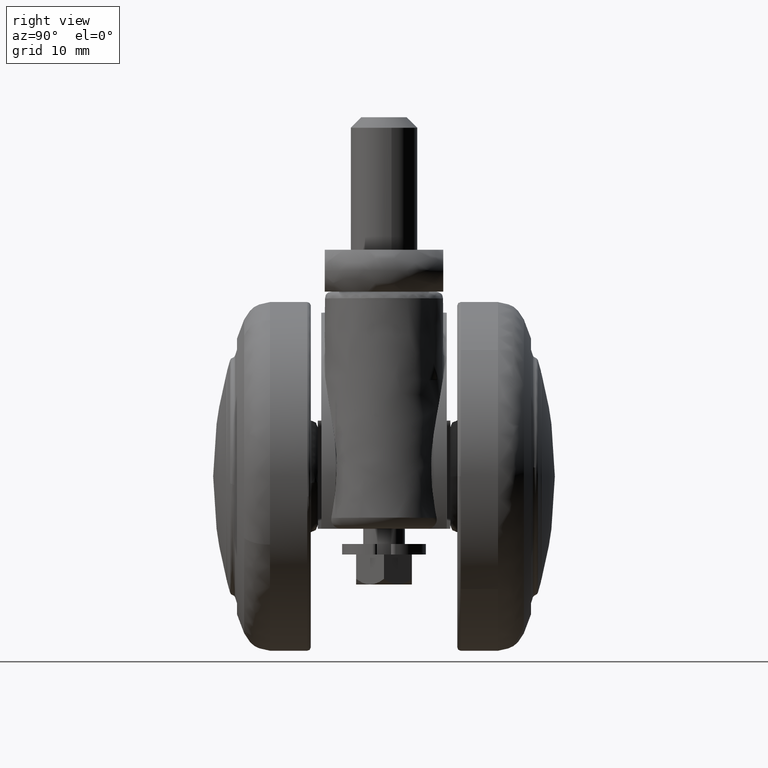
[diagram: clean part render]
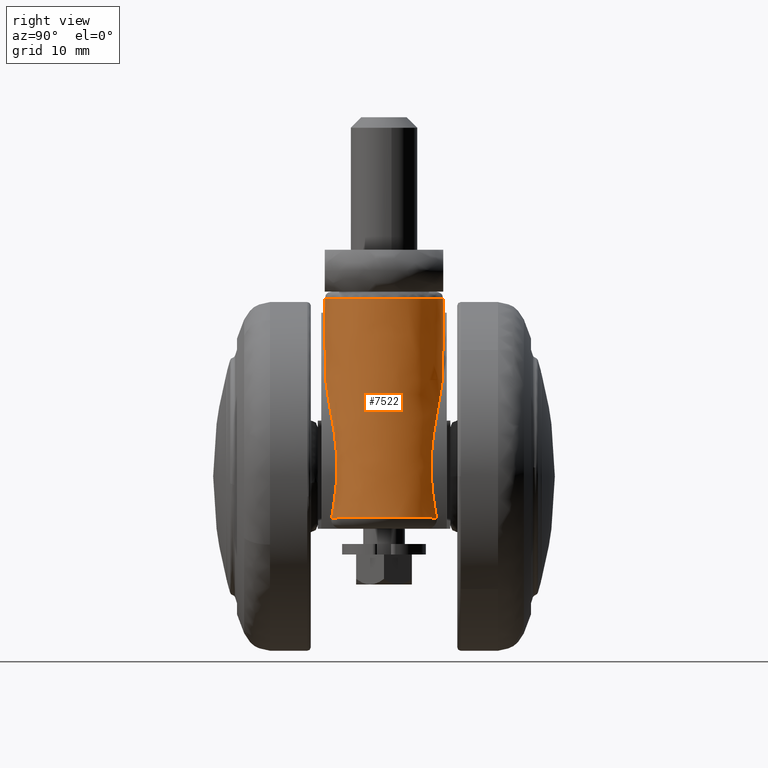
[diagram: same view with one face highlighted and labeled with its STEP entity id]
A machine part, right view. The second image highlights one B-rep face of the part: STEP entity #7522.
In plain terms, the highlighted face is a freeform B-spline surface patch.
Its self-contained STEP definition (entity closure, byte-faithful):
#5633=CARTESIAN_POINT('',(9.070010925223931,-2.937707243113865,25.444837357169000));
#5634=VERTEX_POINT('',#5633);
#5635=CARTESIAN_POINT('',(9.075658105813609,2.952950023515245,25.444858591452249));
#5636=VERTEX_POINT('',#5635);
#5868=CARTESIAN_POINT('',(9.075658105813609,2.952950023515245,25.444858591452249));
#5869=CARTESIAN_POINT('',(11.550755547935500,9.624828039032638,25.461932909833362));
#5870=CARTESIAN_POINT('',(18.562812573680841,8.365867655189087,25.510365996857111));
#5871=CARTESIAN_POINT('',(25.574869599426179,7.106907271345536,25.558799083880871));
#5872=CARTESIAN_POINT('',(25.568048645150430,-0.008130619107478,25.558773436024762));
#5873=CARTESIAN_POINT('',(25.561227690874677,-7.123168509560495,25.558747788168667));
#5874=CARTESIAN_POINT('',(18.546769657692909,-8.368734353992007,25.510305672981001));
#5875=CARTESIAN_POINT('',(11.532311624511136,-9.614300198423516,25.461863557793340));
#5876=CARTESIAN_POINT('',(9.070010925223931,-2.937707243113865,25.444837357169000));
#5884=(BOUNDED_CURVE()B_SPLINE_CURVE(2,(#5868,#5869,#5870,#5871,#5872,#5873,#5874,#5875,#5876),.UNSPECIFIED.,.F.,.U.)B_SPLINE_CURVE_WITH_KNOTS((3,2,2,2,3),(0.0,0.250000000000000,0.500000000000000,0.750000000000000,1.0),.UNSPECIFIED.)CURVE()GEOMETRIC_REPRESENTATION_ITEM()RATIONAL_B_SPLINE_CURVE((1.0,0.766812334068948,1.0,0.766812334068948,1.0,0.766812334068948,1.0,0.766812334068948,1.0))REPRESENTATION_ITEM(''));
#5885=EDGE_CURVE('',#5636,#5634,#5884,.T.);
#5938=CARTESIAN_POINT('',(22.884421657853402,7.516820868601760,-5.958834475768210));
#5939=VERTEX_POINT('',#5938);
#6114=CARTESIAN_POINT('',(16.482851119549000,8.438124471990021,17.681804329725850));
#6115=VERTEX_POINT('',#6114);
#6130=CARTESIAN_POINT('',(22.884421657853402,7.516820868601760,-5.958834475768210));
#6131=CARTESIAN_POINT('',(22.941035205759501,7.479574176039711,-5.743664703561418));
#6132=CARTESIAN_POINT('',(23.053400865462059,7.405647539461216,-5.316599198990497));
#6133=CARTESIAN_POINT('',(23.197850357664532,7.299434482752839,-4.674427883910498));
#6134=CARTESIAN_POINT('',(23.323646654923451,7.199598077634553,-4.037475372915838));
#6135=CARTESIAN_POINT('',(23.429829002798911,7.107527343991423,-3.405241178190038));
#6136=CARTESIAN_POINT('',(23.517428412781779,7.024265004432325,-2.777810326827642));
#6137=CARTESIAN_POINT('',(23.586899676400659,6.950754600101239,-2.155118631816310));
#6138=CARTESIAN_POINT('',(23.638782279710110,6.887785205316636,-1.537142284235447));
#6139=CARTESIAN_POINT('',(23.673504431166311,6.836008262977459,-0.923863591479593));
#6140=CARTESIAN_POINT('',(23.691459443789832,6.795958863885354,-0.315226587847751));
#6141=CARTESIAN_POINT('',(23.694791475558990,6.728768864974462,1.135265893010022));
#6142=CARTESIAN_POINT('',(23.506254882257629,6.769606742350410,3.469992097558791));
#6143=CARTESIAN_POINT('',(22.893021020169289,7.100516303880302,6.214123630903401));
#6144=CARTESIAN_POINT('',(22.088752421635728,7.498715084716715,8.529690043623191));
#6145=CARTESIAN_POINT('',(21.227480042849709,7.860746685595074,10.449208108394190));
#6146=CARTESIAN_POINT('',(20.378032612156240,8.131655114637612,11.946957666682490));
#6147=CARTESIAN_POINT('',(19.635105109359760,8.302943642131927,13.107694932109730));
#6148=CARTESIAN_POINT('',(19.048567877204871,8.405745516386718,13.999580676893039));
#6149=CARTESIAN_POINT('',(18.388990409920719,8.479160728360197,14.976932932915050));
#6150=CARTESIAN_POINT('',(17.713875094603271,8.507064315062490,15.957575067134989));
#6151=CARTESIAN_POINT('',(17.080275599176190,8.494933682653562,16.858447289154650));
#6152=CARTESIAN_POINT('',(16.673954527198639,8.456296532415909,17.418429892401711));
#6153=CARTESIAN_POINT('',(16.482851119549000,8.438124471990021,17.681804329725850));
#6154=B_SPLINE_CURVE_WITH_KNOTS('',3,(#6130,#6131,#6132,#6133,#6134,#6135,#6136,#6137,#6138,#6139,#6140,#6141,#6142,#6143,#6144,#6145,#6146,#6147,#6148,#6149,#6150,#6151,#6152,#6153),.UNSPECIFIED.,.F.,.U.,(4,1,1,1,1,1,1,1,1,1,1,1,1,1,1,1,1,1,1,1,1,4),(0.0,0.026363962758521,0.052326769427147,0.077908219648945,0.103129012710371,0.128010749353429,0.152575925959269,0.176847920190641,0.200850967268826,0.224610126198441,0.248151235444041,0.370549190044193,0.496847238813326,0.577595991505935,0.660470245736561,0.746007352332712,0.780990271434176,0.822759933892346,0.871318893285512,0.919022303390770,0.961914075264850,1.0),.UNSPECIFIED.);
#6155=EDGE_CURVE('',#5939,#6115,#6154,.T.);
#6238=CARTESIAN_POINT('',(14.601306427490020,8.036616070161891,20.108176495131101));
#6239=VERTEX_POINT('',#6238);
#6253=CARTESIAN_POINT('',(16.482851119549000,8.438124471990021,17.681804329725850));
#6254=CARTESIAN_POINT('',(16.349956653015330,8.421569956355567,17.861884634854189));
#6255=CARTESIAN_POINT('',(16.089467455427940,8.389121107230800,18.214863772418880));
#6256=CARTESIAN_POINT('',(15.700720078826240,8.320631784174331,18.726941455700949));
#6257=CARTESIAN_POINT('',(15.323978913138021,8.239424697782685,19.212320469294550));
#6258=CARTESIAN_POINT('',(14.959603701792769,8.146762080091074,19.671343708823311));
#6259=CARTESIAN_POINT('',(14.718915710003239,8.072770945257366,19.964788324858571));
#6260=CARTESIAN_POINT('',(14.601306427490020,8.036616070161891,20.108176495131101));
#6261=B_SPLINE_CURVE_WITH_KNOTS('',3,(#6253,#6254,#6255,#6256,#6257,#6258,#6259,#6260),.UNSPECIFIED.,.F.,.U.,(4,1,1,1,1,4),(0.0,0.217227073643007,0.425791288256460,0.625738739886945,0.817121751911590,1.0),.UNSPECIFIED.);
#6262=EDGE_CURVE('',#6115,#6239,#6261,.T.);
#6412=CARTESIAN_POINT('',(14.628022690233299,-8.045893878071739,20.069856902502650));
#6413=VERTEX_POINT('',#6412);
#6414=CARTESIAN_POINT('',(9.070010925223931,-2.937707243113865,25.444837357169000));
#6415=CARTESIAN_POINT('',(9.137854779852775,-3.113466288722163,25.393151683502101));
#6416=CARTESIAN_POINT('',(9.437314180805366,-3.816283612428233,25.163601675117089));
#6417=CARTESIAN_POINT('',(10.122052192541720,-4.949713833514489,24.624292707118361));
#6418=CARTESIAN_POINT('',(11.033351123513730,-5.947166269293470,23.841561182405378));
#6419=CARTESIAN_POINT('',(11.838983254773501,-6.620199027330384,23.089694607089051));
#6420=CARTESIAN_POINT('',(12.493416624146450,-7.073426694443958,22.443864617300481));
#6421=CARTESIAN_POINT('',(13.182630455993470,-7.464366147926037,21.723748380997179));
#6422=CARTESIAN_POINT('',(13.901891359862519,-7.797796438682016,20.931473576218949));
#6423=CARTESIAN_POINT('',(14.382302813897820,-7.961938717928929,20.361424465640361));
#6424=CARTESIAN_POINT('',(14.628022690233299,-8.045893878071739,20.069856902502650));
#6425=B_SPLINE_CURVE_WITH_KNOTS('',3,(#6414,#6415,#6416,#6417,#6418,#6419,#6420,#6421,#6422,#6423,#6424),.UNSPECIFIED.,.F.,.U.,(4,1,1,1,1,1,1,1,4),(0.619286242368023,0.642433091575388,0.713723201895343,0.787697378712744,0.826503465412993,0.866996355129486,0.909325565714501,0.953622024220544,1.0),.UNSPECIFIED.);
#6426=EDGE_CURVE('',#5634,#6413,#6425,.T.);
#6429=CARTESIAN_POINT('',(14.601306427490020,8.036616070161891,20.108176495131101));
#6430=CARTESIAN_POINT('',(14.473772636491390,7.994186218019736,20.260639257984590));
#6431=CARTESIAN_POINT('',(14.221798172967780,7.910355534906422,20.561867022271450));
#6432=CARTESIAN_POINT('',(13.843674151889340,7.761427312865465,20.996753627676430));
#6433=CARTESIAN_POINT('',(13.472379446720470,7.597355012658925,21.412018137519269));
#6434=CARTESIAN_POINT('',(13.108340904053840,7.416591011128974,21.806954662089080));
#6435=CARTESIAN_POINT('',(12.752471044244270,7.219709461237317,22.181803323151691));
#6436=CARTESIAN_POINT('',(12.405559289000109,7.006786097613256,22.536568680209971));
#6437=CARTESIAN_POINT('',(12.068435317601550,6.778085720653270,22.871284696655771));
#6438=CARTESIAN_POINT('',(11.741893920186330,6.533850725352803,23.186089265269722));
#6439=CARTESIAN_POINT('',(11.119426531318640,6.021434094338709,23.768108714070038));
#6440=CARTESIAN_POINT('',(10.249857235354810,5.123386544211281,24.525004583107901));
#6441=CARTESIAN_POINT('',(9.493084373967772,3.930535937429677,25.125540148609911));
#6442=CARTESIAN_POINT('',(9.159624696235994,3.169157468558015,25.381073451788680));
#6443=CARTESIAN_POINT('',(9.075658105813609,2.952950023515245,25.444858591452249));
#6444=B_SPLINE_CURVE_WITH_KNOTS('',3,(#6429,#6430,#6431,#6432,#6433,#6434,#6435,#6436,#6437,#6438,#6439,#6440,#6441,#6442,#6443),.UNSPECIFIED.,.F.,.U.,(4,1,1,1,1,1,1,1,1,1,1,1,4),(0.000000133971701,0.024151095842343,0.047716314890947,0.070709878821745,0.093147096353674,0.115044443081327,0.136419642999478,0.157291750319061,0.177681229735232,0.197610032813696,0.275454087761062,0.349838501214315,0.378333787725815),.UNSPECIFIED.);
#6445=EDGE_CURVE('',#6239,#5636,#6444,.T.);
#6551=CARTESIAN_POINT('',(16.454623500356050,-8.433802439995430,17.714687722858400));
#6552=VERTEX_POINT('',#6551);
#6567=CARTESIAN_POINT('',(14.628022690233299,-8.045893878071739,20.069856902502650));
#6568=CARTESIAN_POINT('',(14.740901701584400,-8.080170442688530,19.932211225865750));
#6569=CARTESIAN_POINT('',(14.972624447439220,-8.150534805171899,19.649646435799198));
#6570=CARTESIAN_POINT('',(15.324267691123261,-8.239379722445307,19.206387148881451));
#6571=CARTESIAN_POINT('',(15.689908287647739,-8.318044991643605,18.735242653458329));
#6572=CARTESIAN_POINT('',(16.069222449128858,-8.385129933801125,18.235858050740319));
#6573=CARTESIAN_POINT('',(16.324233433633822,-8.417335408289095,17.891011668031322));
#6574=CARTESIAN_POINT('',(16.454623500356050,-8.433802439995430,17.714687722858400));
#6575=B_SPLINE_CURVE_WITH_KNOTS('',3,(#6567,#6568,#6569,#6570,#6571,#6572,#6573,#6574),.UNSPECIFIED.,.F.,.U.,(4,1,1,1,1,4),(0.0,0.180786211241974,0.371125480106966,0.571075474284061,0.780685927567114,1.0),.UNSPECIFIED.);
#6576=EDGE_CURVE('',#6413,#6552,#6575,.T.);
#6710=CARTESIAN_POINT('',(22.884421657854048,-7.516820868601419,-5.958834475768200));
#6711=VERTEX_POINT('',#6710);
#6725=CARTESIAN_POINT('',(16.454623500356050,-8.433802439995430,17.714687722858400));
#6726=CARTESIAN_POINT('',(16.598520724204619,-8.448525893099395,17.517217073279259));
#6727=CARTESIAN_POINT('',(16.898383985293250,-8.479207624792830,17.105713673508891));
#6728=CARTESIAN_POINT('',(17.359763421715989,-8.500303104275389,16.457326015900868));
#6729=CARTESIAN_POINT('',(17.851851442711880,-8.501324684606161,15.754885662015930));
#6730=CARTESIAN_POINT('',(18.523476042073941,-8.468669072795919,14.778029138666181));
#6731=CARTESIAN_POINT('',(19.290070986895500,-8.374006850486920,13.637237941838359));
#6732=CARTESIAN_POINT('',(20.109607370917171,-8.198843281947196,12.376511214417990));
#6733=CARTESIAN_POINT('',(20.793145894324201,-8.000589052539228,11.224552656960929));
#6734=CARTESIAN_POINT('',(21.384629588441019,-7.789950177165819,10.083742733080619));
#6735=CARTESIAN_POINT('',(21.903253041864609,-7.575220772521203,8.936871629809209));
#6736=CARTESIAN_POINT('',(22.351100663354352,-7.368184370053407,7.783178785925369));
#6737=CARTESIAN_POINT('',(22.942826491222771,-7.072866185837705,5.986572221678446));
#6738=CARTESIAN_POINT('',(23.500532643893589,-6.771618264514099,3.513964989326904));
#6739=CARTESIAN_POINT('',(23.711636907188922,-6.722873823495839,0.971407266730476));
#6740=CARTESIAN_POINT('',(23.683458540958739,-6.827611093032862,-0.895426987346204));
#6741=CARTESIAN_POINT('',(23.597486999330378,-6.943542256372659,-2.138348625688205));
#6742=CARTESIAN_POINT('',(23.439021004132019,-7.102513697713928,-3.398881367437665));
#6743=CARTESIAN_POINT('',(23.209977972522029,-7.296763364763464,-4.679174068529070));
#6744=CARTESIAN_POINT('',(22.993987584356489,-7.442760550292409,-5.528164966959476));
#6745=CARTESIAN_POINT('',(22.884421657854048,-7.516820868601419,-5.958834475768200));
#6746=B_SPLINE_CURVE_WITH_KNOTS('',3,(#6725,#6726,#6727,#6728,#6729,#6730,#6731,#6732,#6733,#6734,#6735,#6736,#6737,#6738,#6739,#6740,#6741,#6742,#6743,#6744,#6745),.UNSPECIFIED.,.F.,.U.,(4,1,1,1,1,1,1,1,1,1,1,1,1,1,1,1,1,1,4),(0.000000164308848,0.028557043947512,0.059509021783737,0.092858782268554,0.128608596295363,0.197851326857412,0.253503834390934,0.305172920279531,0.355751086849525,0.405347946190603,0.454079798634802,0.502069292555429,0.628649993261960,0.750533614609962,0.798143810742657,0.846702575503707,0.896409723858489,0.947451529308848,1.0),.UNSPECIFIED.);
#6747=EDGE_CURVE('',#6552,#6711,#6746,.T.);
#6930=CARTESIAN_POINT('',(22.884421657854059,-7.516820868601410,-5.958834475768197));
#6931=CARTESIAN_POINT('',(27.421203602789554,-5.124433799219100,-5.911824467522101));
#6932=CARTESIAN_POINT('',(27.421203602789550,3.726602E-013,-5.911824467522101));
#6933=CARTESIAN_POINT('',(27.421203602789554,5.124433799219609,-5.911824467522101));
#6934=CARTESIAN_POINT('',(22.884421657853402,7.516820868601759,-5.958834475768204));
#6942=(BOUNDED_CURVE()B_SPLINE_CURVE(2,(#6930,#6931,#6932,#6933,#6934),.UNSPECIFIED.,.F.,.U.)B_SPLINE_CURVE_WITH_KNOTS((3,2,3),(0.0,0.500000000000000,1.0),.UNSPECIFIED.)CURVE()GEOMETRIC_REPRESENTATION_ITEM()RATIONAL_B_SPLINE_CURVE((1.0,0.856404930734300,1.0,0.856404930734300,1.0))REPRESENTATION_ITEM(''));
#6943=EDGE_CURVE('',#6711,#5939,#6942,.T.);
#7486=CARTESIAN_POINT('',(10.936393627737321,2.696239683643833,-7.693473048748208));
#7487=CARTESIAN_POINT('',(8.936543946807907,2.696239683643833,26.268183418096179));
#7488=CARTESIAN_POINT('',(13.235217723024569,9.581014315584186,-7.558105604643663));
#7489=CARTESIAN_POINT('',(11.235368042095152,9.581014315584188,26.403550862200735));
#7490=CARTESIAN_POINT('',(20.383085710117680,8.383575480941559,-7.137199706626906));
#7491=CARTESIAN_POINT('',(18.383236029188261,8.383575480941561,26.824456760217480));
#7492=CARTESIAN_POINT('',(27.530953697210773,7.186136646298929,-6.716293808610137));
#7493=CARTESIAN_POINT('',(25.531104016281379,7.186136646298933,27.245362658234246));
#7494=CARTESIAN_POINT('',(27.468475411401741,-0.073279392672857,-6.719972874737619));
#7495=CARTESIAN_POINT('',(25.468625730472329,-0.073279392672861,27.241683592106771));
#7496=CARTESIAN_POINT('',(27.405997125592702,-7.332695431644645,-6.723651940865082));
#7497=CARTESIAN_POINT('',(25.406147444663283,-7.332695431644650,27.238004525979296));
#7498=CARTESIAN_POINT('',(20.238581624065262,-8.406502326124064,-7.145708904364843));
#7499=CARTESIAN_POINT('',(18.238731943135839,-8.406502326124064,26.815947562479540));
#7500=CARTESIAN_POINT('',(13.071166122537816,-9.480309220603488,-7.567765867864581));
#7501=CARTESIAN_POINT('',(11.071316441608401,-9.480309220603482,26.393890598979812));
#7502=CARTESIAN_POINT('',(10.891182788941849,-2.556853995820500,-7.696135312340289));
#7503=CARTESIAN_POINT('',(8.891333108012432,-2.556853995820493,26.265521154504100));
#7511=(BOUNDED_SURFACE()B_SPLINE_SURFACE(1,2,((#7486,#7488,#7490,#7492,#7494,#7496,#7498,#7500,#7502),(#7487,#7489,#7491,#7493,#7495,#7497,#7499,#7501,#7503)),.UNSPECIFIED.,.F.,.F.,.U.)B_SPLINE_SURFACE_WITH_KNOTS((2,2),(3,2,2,2,3),(0.0,34.020486603196417),(0.0,12.543262221734119,25.086524443468250,37.629786665202367,50.173048886936492),.UNSPECIFIED.)GEOMETRIC_REPRESENTATION_ITEM()RATIONAL_B_SPLINE_SURFACE(((1.0,0.760405965600031,1.0,0.760405965600031,1.0,0.760405965600031,1.0,0.760405965600031,1.0),(1.0,0.760405965600031,1.0,0.760405965600031,1.0,0.760405965600031,1.0,0.760405965600031,1.0)))REPRESENTATION_ITEM('')SURFACE());
#7512=ORIENTED_EDGE('',*,*,#6445,.T.);
#7513=ORIENTED_EDGE('',*,*,#5885,.T.);
#7514=ORIENTED_EDGE('',*,*,#6426,.T.);
#7515=ORIENTED_EDGE('',*,*,#6576,.T.);
#7516=ORIENTED_EDGE('',*,*,#6747,.T.);
#7517=ORIENTED_EDGE('',*,*,#6943,.T.);
#7518=ORIENTED_EDGE('',*,*,#6155,.T.);
#7519=ORIENTED_EDGE('',*,*,#6262,.T.);
#7520=EDGE_LOOP('',(#7512,#7513,#7514,#7515,#7516,#7517,#7518,#7519));
#7521=FACE_OUTER_BOUND('',#7520,.T.);
#7522=ADVANCED_FACE('',(#7521),#7511,.T.);